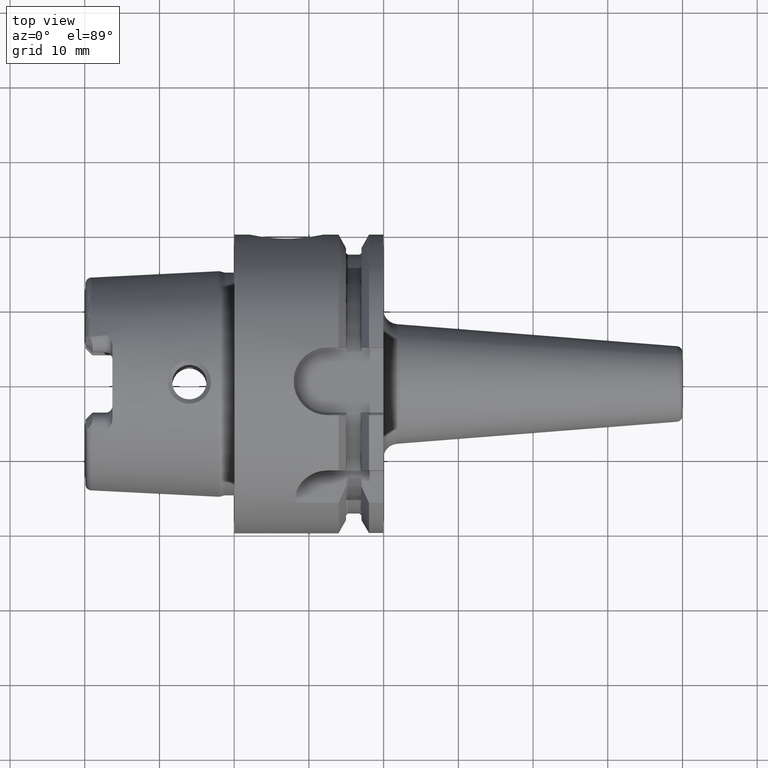
[diagram: clean part render]
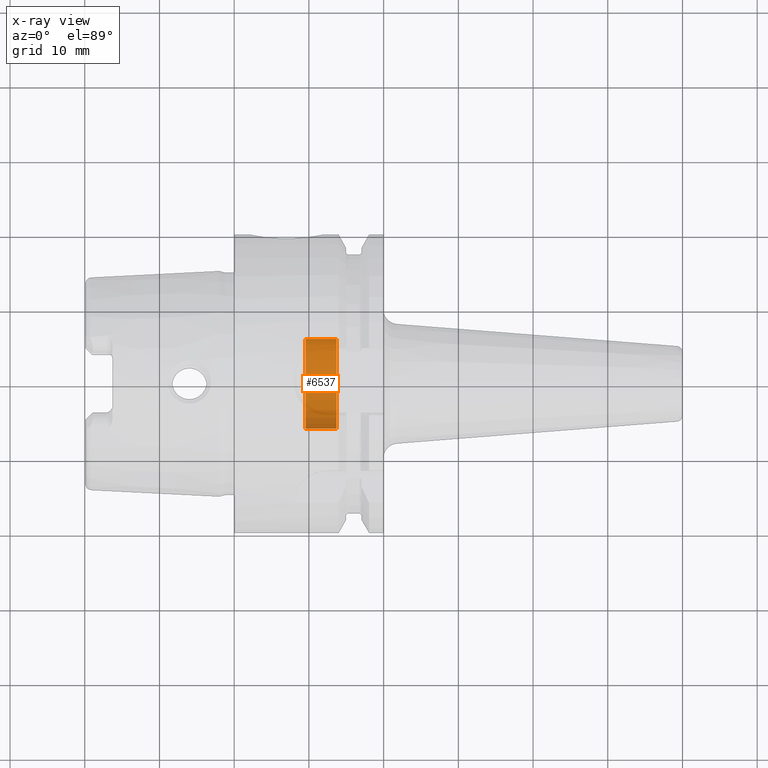
[diagram: x-ray — body ghosted, one internal face saturated and labeled with its STEP entity id]
A machine part, top view, then the same camera in x-ray: the body is ghosted and one INTERNAL B-rep face — a face not visible from any outside direction — is saturated and labeled: STEP entity #6537.
In plain terms, the highlighted cylindrical surface (partial cylindrical patch) has radius 6 mm, axis along (-1, 0, 0).
Its self-contained STEP definition (entity closure, byte-faithful):
#6486=CARTESIAN_POINT('',(1.37E1,0.E0,0.E0));
#6487=DIRECTION('',(-1.E0,0.E0,0.E0));
#6488=DIRECTION('',(0.E0,1.E0,0.E0));
#6489=AXIS2_PLACEMENT_3D('',#6486,#6487,#6488);
#6491=CARTESIAN_POINT('',(9.5625E0,0.E0,0.E0));
#6492=DIRECTION('',(1.E0,0.E0,0.E0));
#6493=DIRECTION('',(0.E0,-1.E0,0.E0));
#6494=AXIS2_PLACEMENT_3D('',#6491,#6492,#6493);
#6496=DIRECTION('',(1.E0,0.E0,0.E0));
#6497=VECTOR('',#6496,4.1375E0);
#6498=CARTESIAN_POINT('',(9.5625E0,6.E0,0.E0));
#6499=LINE('',#6498,#6497);
#6505=DIRECTION('',(1.E0,0.E0,0.E0));
#6506=VECTOR('',#6505,4.1375E0);
#6507=CARTESIAN_POINT('',(9.5625E0,-6.E0,0.E0));
#6508=LINE('',#6507,#6506);
#6514=CARTESIAN_POINT('',(9.5625E0,6.E0,0.E0));
#6515=CARTESIAN_POINT('',(1.37E1,6.E0,0.E0));
#6516=VERTEX_POINT('',#6514);
#6517=VERTEX_POINT('',#6515);
#6518=CARTESIAN_POINT('',(9.5625E0,-6.E0,0.E0));
#6519=CARTESIAN_POINT('',(1.37E1,-6.E0,0.E0));
#6520=VERTEX_POINT('',#6518);
#6521=VERTEX_POINT('',#6519);
#6522=CARTESIAN_POINT('',(1.851760861489E1,0.E0,0.E0));
#6523=DIRECTION('',(-1.E0,0.E0,0.E0));
#6524=DIRECTION('',(0.E0,1.E0,0.E0));
#6525=AXIS2_PLACEMENT_3D('',#6522,#6523,#6524);
#6526=CYLINDRICAL_SURFACE('',#6525,6.E0);
#6528=ORIENTED_EDGE('',*,*,#6527,.T.);
#6530=ORIENTED_EDGE('',*,*,#6529,.T.);
#6532=ORIENTED_EDGE('',*,*,#6531,.F.);
#6534=ORIENTED_EDGE('',*,*,#6533,.T.);
#6535=EDGE_LOOP('',(#6528,#6530,#6532,#6534));
#6536=FACE_OUTER_BOUND('',#6535,.F.);
#6537=ADVANCED_FACE('',(#6536),#6526,.F.);
#6490=CIRCLE('',#6489,6.E0);
#6495=CIRCLE('',#6494,6.E0);
#6527=EDGE_CURVE('',#6516,#6517,#6499,.T.);
#6529=EDGE_CURVE('',#6517,#6521,#6490,.T.);
#6531=EDGE_CURVE('',#6520,#6521,#6508,.T.);
#6533=EDGE_CURVE('',#6520,#6516,#6495,.T.);